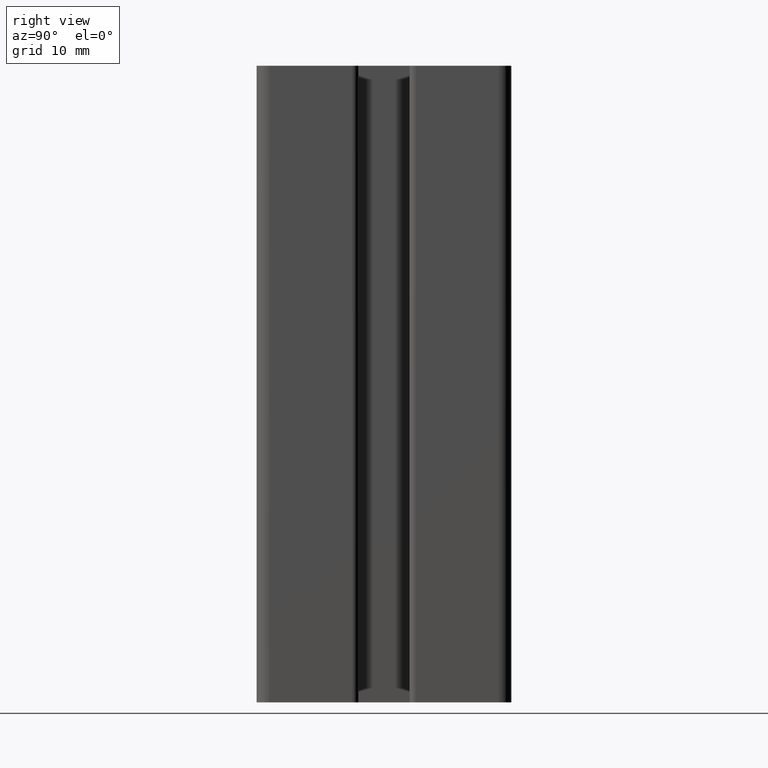
[diagram: clean part render]
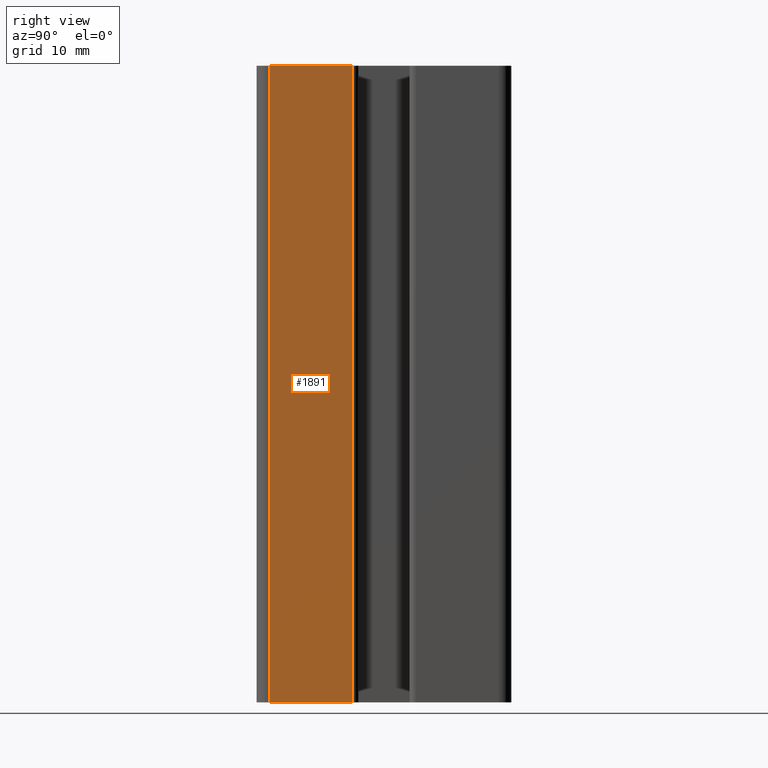
[diagram: same view with one face highlighted and labeled with its STEP entity id]
A machine part, right view. The second image highlights one B-rep face of the part: STEP entity #1891.
In plain terms, the highlighted planar face has unit normal (1, 0, 0).
Its self-contained STEP definition (entity closure, byte-faithful):
#256=FACE_OUTER_BOUND('',#356,.T.);
#356=EDGE_LOOP('',(#1647,#1648,#1649,#1650));
#410=LINE('',#2814,#594);
#543=LINE('',#3192,#727);
#544=LINE('',#3201,#728);
#545=LINE('',#3202,#729);
#594=VECTOR('',#2254,100.);
#727=VECTOR('',#2623,13.0000039845452);
#728=VECTOR('',#2638,100.);
#729=VECTOR('',#2639,13.0000039845452);
#786=VERTEX_POINT('',#2810);
#788=VERTEX_POINT('',#2813);
#915=VERTEX_POINT('',#3190);
#916=VERTEX_POINT('',#3200);
#997=EDGE_CURVE('',#786,#788,#410,.T.);
#1186=EDGE_CURVE('',#786,#915,#543,.T.);
#1191=EDGE_CURVE('',#916,#915,#544,.T.);
#1192=EDGE_CURVE('',#788,#916,#545,.T.);
#1647=ORIENTED_EDGE('',*,*,#997,.F.);
#1648=ORIENTED_EDGE('',*,*,#1186,.T.);
#1649=ORIENTED_EDGE('',*,*,#1191,.F.);
#1650=ORIENTED_EDGE('',*,*,#1192,.F.);
#1797=PLANE('',#2081);
#1891=ADVANCED_FACE('',(#256),#1797,.T.);
#2081=AXIS2_PLACEMENT_3D('',#3199,#2636,#2637);
#2254=DIRECTION('',(0.,0.,-1.));
#2623=DIRECTION('',(0.,-1.,0.));
#2636=DIRECTION('center_axis',(1.,0.,0.));
#2637=DIRECTION('ref_axis',(0.,1.,0.));
#2638=DIRECTION('',(0.,0.,1.));
#2639=DIRECTION('',(0.,-1.,0.));
#2810=CARTESIAN_POINT('',(19.9999997578296,-4.99999601545476,100.));
#2813=CARTESIAN_POINT('',(19.9999997578296,-4.99999601545476,0.));
#2814=CARTESIAN_POINT('',(20.,-4.99999601545472,0.));
#3190=CARTESIAN_POINT('',(20.,-18.,100.));
#3192=CARTESIAN_POINT('',(20.,-9.,100.));
#3199=CARTESIAN_POINT('Origin',(20.,-18.,0.));
#3200=CARTESIAN_POINT('',(20.,-18.,0.));
#3201=CARTESIAN_POINT('',(20.,-18.,0.));
#3202=CARTESIAN_POINT('',(20.,-9.,0.));